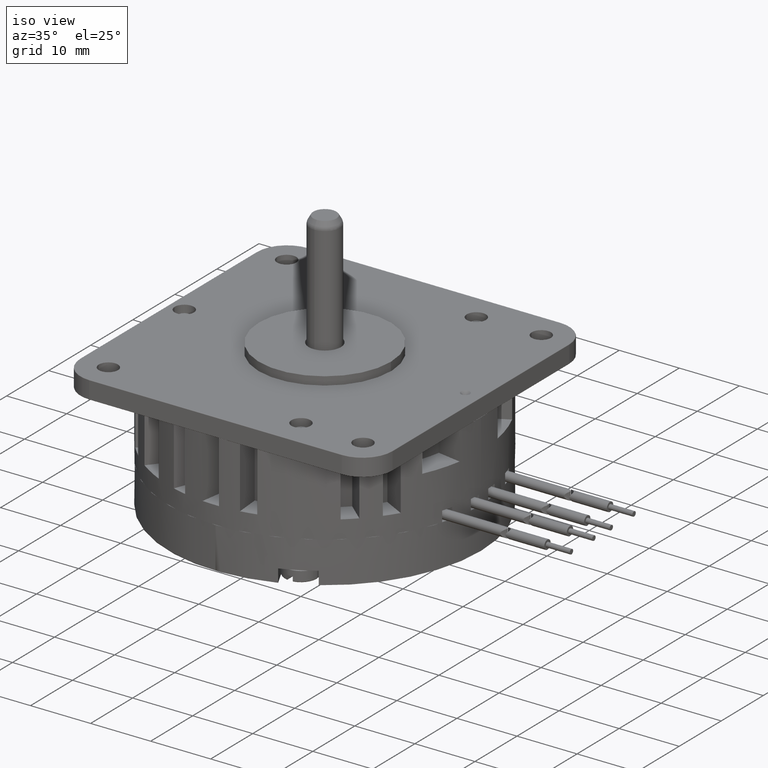
[diagram: clean part render]
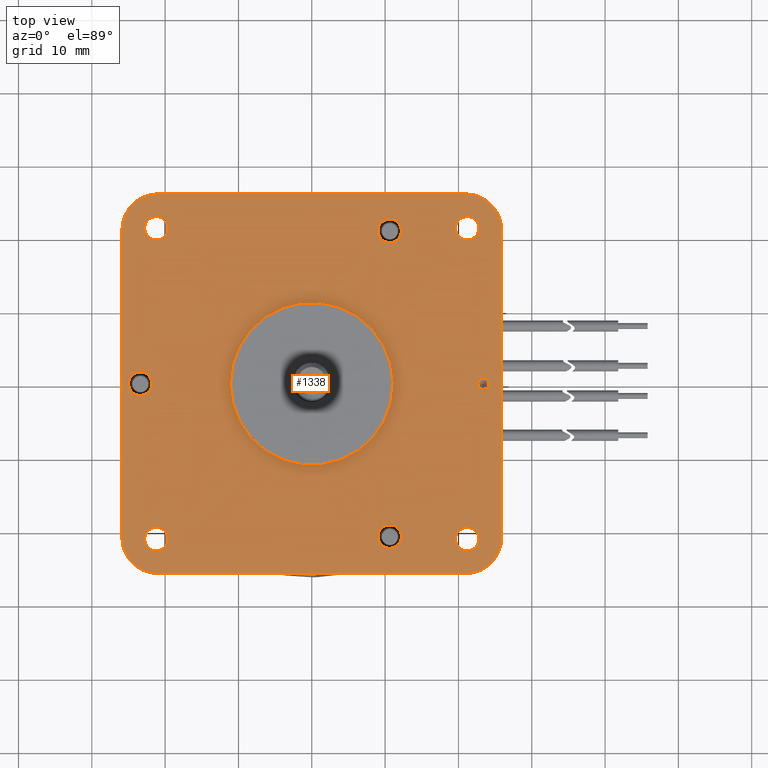
[diagram: tour spotlight — one face highlighted and labeled with its STEP entity id]
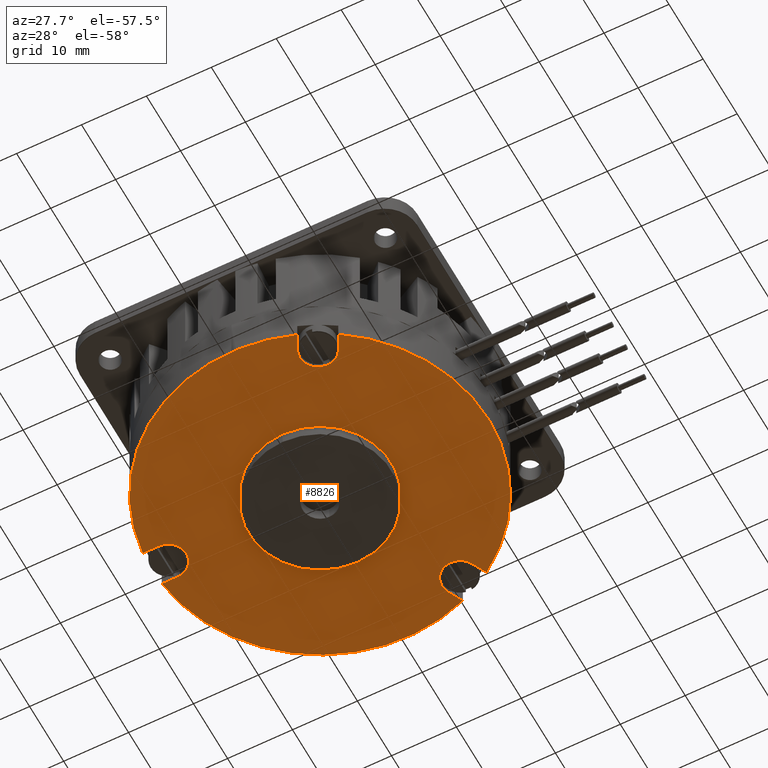
[diagram: tour spotlight — one face highlighted and labeled with its STEP entity id]
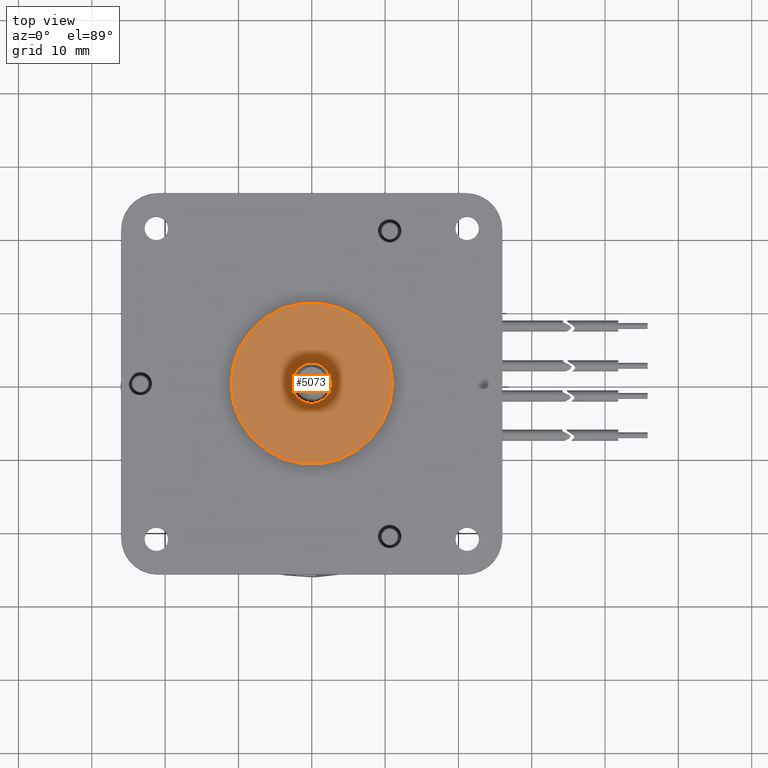
[diagram: tour spotlight — one face highlighted and labeled with its STEP entity id]
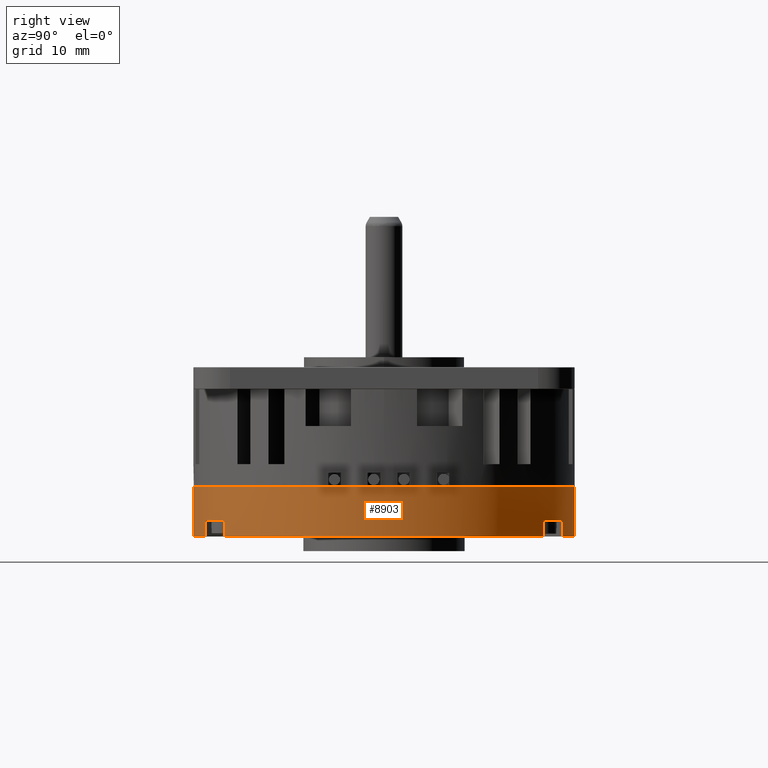
[diagram: tour spotlight — one face highlighted and labeled with its STEP entity id]
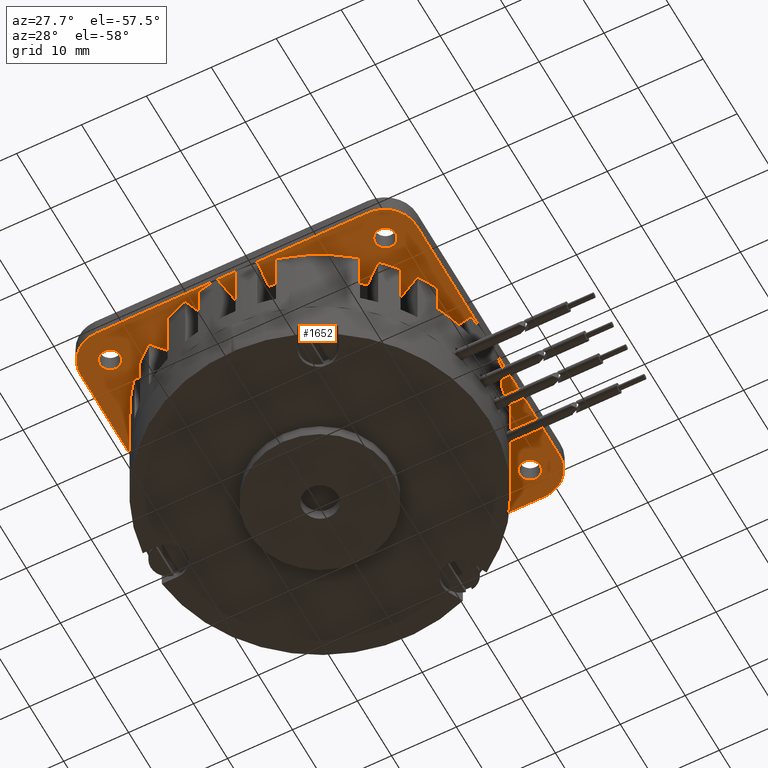
[diagram: tour spotlight — one face highlighted and labeled with its STEP entity id]
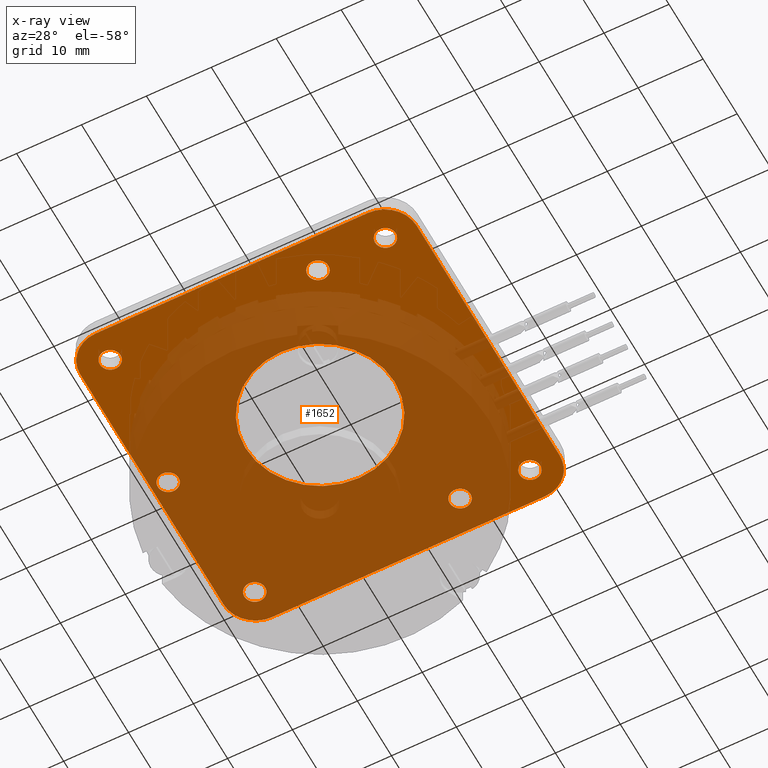
[diagram: x-ray of the same camera — body ghosted, this tour face saturated]
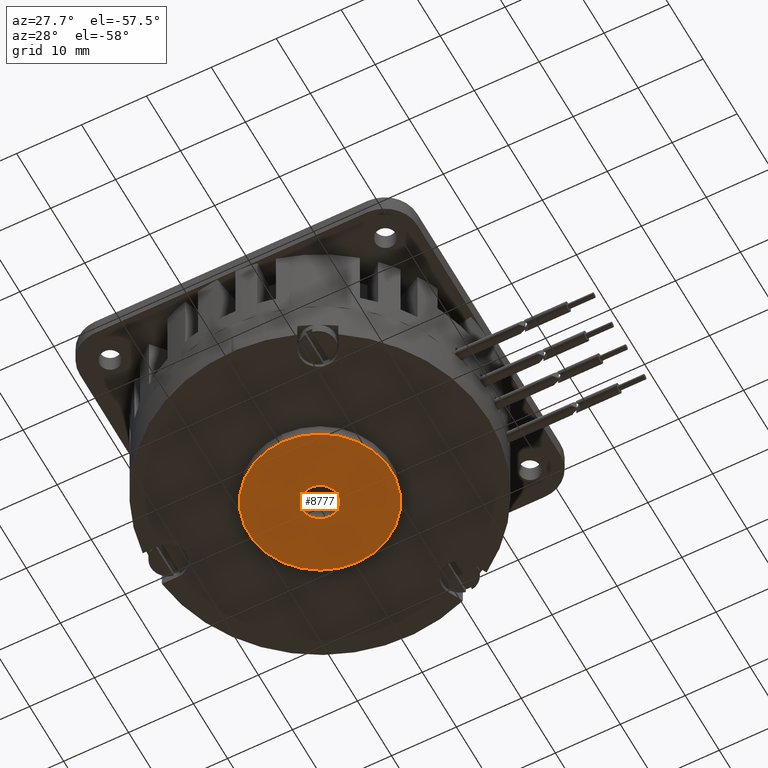
[diagram: tour spotlight — one face highlighted and labeled with its STEP entity id]
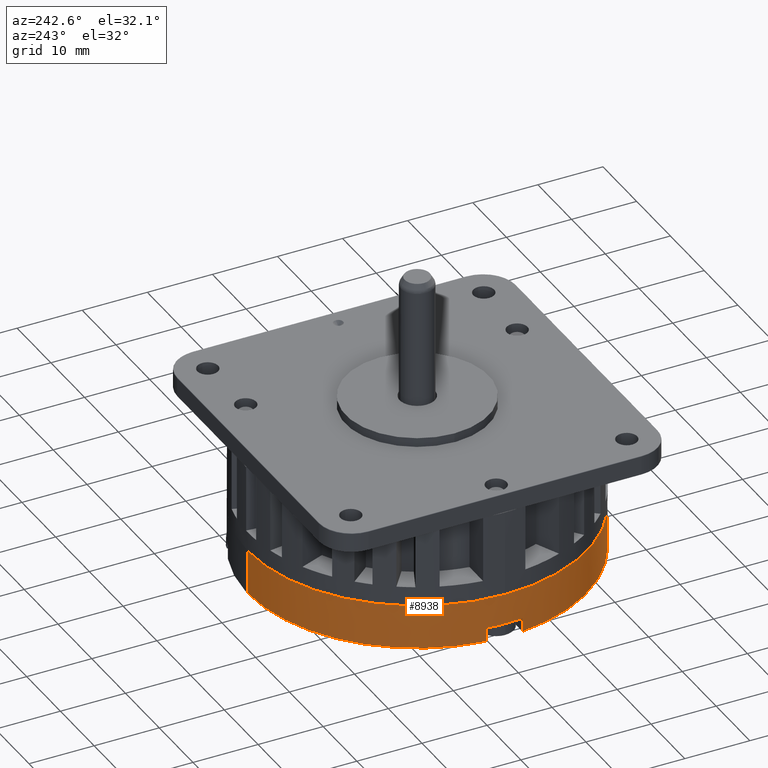
[diagram: tour spotlight — one face highlighted and labeled with its STEP entity id]
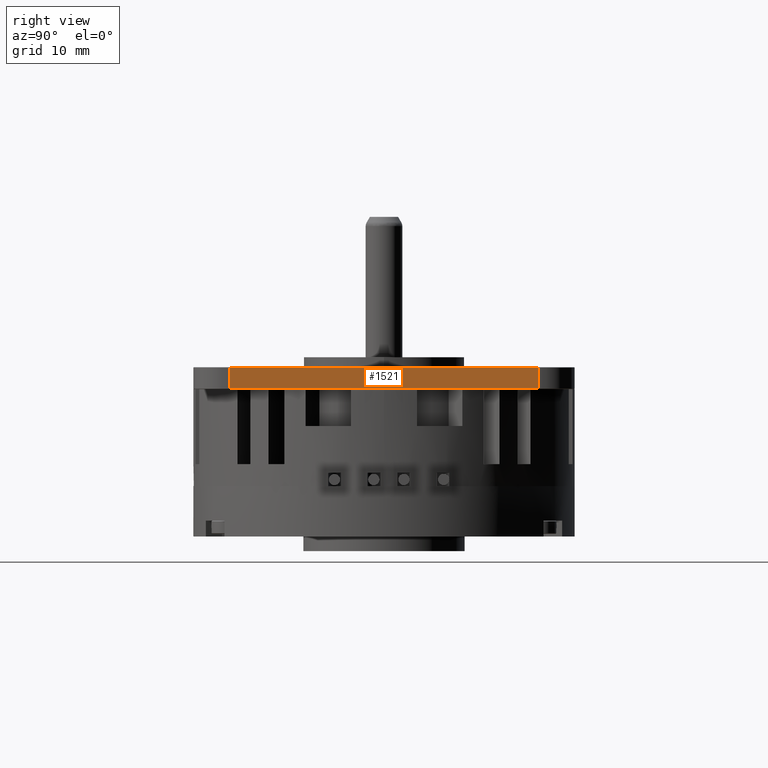
[diagram: tour spotlight — one face highlighted and labeled with its STEP entity id]
A machine part: a face-by-face anatomy tour. The part has 385 B-rep faces; the first image is the clean iso view, then the 8 largest visible faces are spotlighted one at a time (largest first), each with its STEP entity span.

Face 1 — top view, entity #1338. In plain terms, the highlighted planar face has unit normal (0, 0, 1).
Definition (entity closure, byte-faithful):
#523=CARTESIAN_POINT('',(-2.1E1,1.5E0,2.1E1));
#524=DIRECTION('',(0.E0,-1.E0,0.E0));
#525=DIRECTION('',(-2.446198489886E-7,0.E0,1.E0));
#526=AXIS2_PLACEMENT_3D('',#523,#524,#525);
#528=CARTESIAN_POINT('',(-2.1E1,1.5E0,-2.1E1));
#529=DIRECTION('',(0.E0,-1.E0,0.E0));
#530=DIRECTION('',(-1.E0,0.E0,-2.446198489886E-7));
#531=AXIS2_PLACEMENT_3D('',#528,#529,#530);
#533=CARTESIAN_POINT('',(2.1E1,1.5E0,-2.1E1));
#534=DIRECTION('',(0.E0,-1.E0,0.E0));
#535=DIRECTION('',(2.446198489886E-7,0.E0,-1.E0));
#536=AXIS2_PLACEMENT_3D('',#533,#534,#535);
#538=CARTESIAN_POINT('',(2.1E1,1.5E0,2.1E1));
#539=DIRECTION('',(0.E0,-1.E0,0.E0));
#540=DIRECTION('',(1.E0,0.E0,2.446198489886E-7));
#541=AXIS2_PLACEMENT_3D('',#538,#539,#540);
#543=CARTESIAN_POINT('',(0.E0,1.5E0,0.E0));
#544=DIRECTION('',(0.E0,1.E0,0.E0));
#545=DIRECTION('',(-9.999026627819E-1,0.E0,1.395223859017E-2));
#546=AXIS2_PLACEMENT_3D('',#543,#544,#545);
#548=CARTESIAN_POINT('',(0.E0,1.5E0,0.E0));
#549=DIRECTION('',(0.E0,1.E0,0.E0));
#550=DIRECTION('',(9.999026627819E-1,0.E0,-1.395223859017E-2));
#551=AXIS2_PLACEMENT_3D('',#548,#549,#550);
#553=CARTESIAN_POINT('',(-2.12E1,1.5E0,-2.12E1));
#554=DIRECTION('',(0.E0,1.E0,0.E0));
#555=DIRECTION('',(1.E0,0.E0,0.E0));
#556=AXIS2_PLACEMENT_3D('',#553,#554,#555);
#558=CARTESIAN_POINT('',(-2.12E1,1.5E0,-2.12E1));
#559=DIRECTION('',(0.E0,1.E0,0.E0));
#560=DIRECTION('',(-1.E0,0.E0,0.E0));
#561=AXIS2_PLACEMENT_3D('',#558,#559,#560);
#563=CARTESIAN_POINT('',(2.12E1,1.5E0,-2.12E1));
#564=DIRECTION('',(0.E0,1.E0,0.E0));
#565=DIRECTION('',(1.E0,0.E0,0.E0));
#566=AXIS2_PLACEMENT_3D('',#563,#564,#565);
#568=CARTESIAN_POINT('',(2.12E1,1.5E0,-2.12E1));
#569=DIRECTION('',(0.E0,1.E0,0.E0));
#570=DIRECTION('',(-1.E0,0.E0,0.E0));
#571=AXIS2_PLACEMENT_3D('',#568,#569,#570);
#573=CARTESIAN_POINT('',(-2.12E1,1.5E0,2.12E1));
#574=DIRECTION('',(0.E0,1.E0,0.E0));
#575=DIRECTION('',(-1.E0,0.E0,0.E0));
#576=AXIS2_PLACEMENT_3D('',#573,#574,#575);
#578=CARTESIAN_POINT('',(-2.12E1,1.5E0,2.12E1));
#579=DIRECTION('',(0.E0,1.E0,0.E0));
#580=DIRECTION('',(1.E0,0.E0,0.E0));
#581=AXIS2_PLACEMENT_3D('',#578,#579,#580);
#583=CARTESIAN_POINT('',(2.12E1,1.5E0,2.12E1));
#584=DIRECTION('',(0.E0,1.E0,0.E0));
#585=DIRECTION('',(-1.E0,0.E0,0.E0));
#586=AXIS2_PLACEMENT_3D('',#583,#584,#585);
#588=CARTESIAN_POINT('',(2.12E1,1.5E0,2.12E1));
#589=DIRECTION('',(0.E0,1.E0,0.E0));
#590=DIRECTION('',(1.E0,0.E0,0.E0));
#591=AXIS2_PLACEMENT_3D('',#588,#589,#590);
#593=CARTESIAN_POINT('',(2.34E1,1.5E0,0.E0));
#594=DIRECTION('',(0.E0,1.E0,0.E0));
#595=DIRECTION('',(1.E0,0.E0,0.E0));
#596=AXIS2_PLACEMENT_3D('',#593,#594,#595);
#598=CARTESIAN_POINT('',(2.34E1,1.5E0,0.E0));
#599=DIRECTION('',(0.E0,1.E0,0.E0));
#600=DIRECTION('',(-1.E0,0.E0,0.E0));
#601=AXIS2_PLACEMENT_3D('',#598,#599,#600);
#603=CARTESIAN_POINT('',(1.062337769391E1,1.5E0,-2.084955266601E1));
#604=DIRECTION('',(0.E0,1.E0,0.E0));
#605=DIRECTION('',(1.E0,0.E0,0.E0));
#606=AXIS2_PLACEMENT_3D('',#603,#604,#605);
#608=CARTESIAN_POINT('',(1.062337769391E1,1.5E0,-2.084955266601E1));
#609=DIRECTION('',(0.E0,1.E0,0.E0));
#610=DIRECTION('',(-1.E0,0.E0,0.E0));
#611=AXIS2_PLACEMENT_3D('',#608,#609,#610);
#613=CARTESIAN_POINT('',(1.062337769391E1,1.5E0,2.084955266601E1));
#614=DIRECTION('',(0.E0,1.E0,0.E0));
#615=DIRECTION('',(1.E0,0.E0,0.E0));
#616=AXIS2_PLACEMENT_3D('',#613,#614,#615);
#618=CARTESIAN_POINT('',(1.062337769391E1,1.5E0,2.084955266601E1));
#619=DIRECTION('',(0.E0,1.E0,0.E0));
#620=DIRECTION('',(-1.E0,0.E0,0.E0));
#621=AXIS2_PLACEMENT_3D('',#618,#619,#620);
#623=CARTESIAN_POINT('',(-2.34E1,1.5E0,0.E0));
#624=DIRECTION('',(0.E0,1.E0,0.E0));
#625=DIRECTION('',(1.E0,0.E0,0.E0));
#626=AXIS2_PLACEMENT_3D('',#623,#624,#625);
#628=CARTESIAN_POINT('',(-2.34E1,1.5E0,0.E0));
#629=DIRECTION('',(0.E0,1.E0,0.E0));
#630=DIRECTION('',(-1.E0,0.E0,0.E0));
#631=AXIS2_PLACEMENT_3D('',#628,#629,#630);
#648=DIRECTION('',(1.E0,0.E0,0.E0));
#649=VECTOR('',#648,4.200000079911E1);
#650=CARTESIAN_POINT('',(-2.100000039955E1,1.5E0,2.590000003943E1));
#651=LINE('',#650,#649);
#671=DIRECTION('',(0.E0,0.E0,-1.E0));
#672=VECTOR('',#671,4.200000079911E1);
#673=CARTESIAN_POINT('',(2.590000003943E1,1.5E0,2.100000039955E1));
#674=LINE('',#673,#672);
#694=DIRECTION('',(-1.E0,0.E0,0.E0));
#695=VECTOR('',#694,4.200000079911E1);
#696=CARTESIAN_POINT('',(2.100000039955E1,1.5E0,-2.590000003943E1));
#697=LINE('',#696,#695);
#717=DIRECTION('',(0.E0,0.E0,1.E0));
#718=VECTOR('',#717,4.200000079911E1);
#719=CARTESIAN_POINT('',(-2.590000003943E1,1.5E0,-2.100000039955E1));
#720=LINE('',#719,#718);
#991=CARTESIAN_POINT('',(0.E0,1.5E0,0.E0));
#992=DIRECTION('',(0.E0,-1.E0,0.E0));
#993=DIRECTION('',(9.999026627819E-1,0.E0,-1.395223859017E-2));
#994=AXIS2_PLACEMENT_3D('',#991,#992,#993);
#1011=CARTESIAN_POINT('',(0.E0,1.5E0,0.E0));
#1012=DIRECTION('',(0.E0,-1.E0,0.E0));
#1013=DIRECTION('',(-9.999026627819E-1,0.E0,1.395223859017E-2));
#1014=AXIS2_PLACEMENT_3D('',#1011,#1012,#1013);
#1099=CARTESIAN_POINT('',(-2.100000119864E1,1.5E0,2.590000011829E1));
#1100=CARTESIAN_POINT('',(-2.590000011829E1,1.5E0,2.100000119868E1));
#1101=VERTEX_POINT('',#1099);
#1102=VERTEX_POINT('',#1100);
#1103=CARTESIAN_POINT('',(-2.590000003943E1,1.5E0,-2.100000039955E1));
#1104=VERTEX_POINT('',#1103);
#1105=CARTESIAN_POINT('',(-2.100000119868E1,1.5E0,-2.590000011829E1));
#1106=VERTEX_POINT('',#1105);
#1107=CARTESIAN_POINT('',(2.100000039955E1,1.5E0,-2.590000003943E1));
#1108=VERTEX_POINT('',#1107);
#1109=CARTESIAN_POINT('',(2.590000011829E1,1.5E0,-2.100000119868E1));
#1110=VERTEX_POINT('',#1109);
#1111=CARTESIAN_POINT('',(2.590000003943E1,1.5E0,2.100000039955E1));
#1112=VERTEX_POINT('',#1111);
#1113=CARTESIAN_POINT('',(2.100000119868E1,1.5E0,2.590000011829E1));
#1114=VERTEX_POINT('',#1113);
#1115=CARTESIAN_POINT('',(-1.109891950912E1,1.5E0,1.548698476846E-1));
#1116=CARTESIAN_POINT('',(1.109999906901E1,1.5E0,4.428059604058E-3));
#1117=VERTEX_POINT('',#1115);
#1118=VERTEX_POINT('',#1116);
#1119=CARTESIAN_POINT('',(-1.109999906901E1,1.5E0,-4.428059604057E-3));
#1120=VERTEX_POINT('',#1119);
#1121=CARTESIAN_POINT('',(1.109891950912E1,1.5E0,-1.548698476846E-1));
#1122=VERTEX_POINT('',#1121);
#1123=CARTESIAN_POINT('',(-1.96E1,1.5E0,-2.12E1));
#1124=CARTESIAN_POINT('',(-2.28E1,1.5E0,-2.12E1));
#1125=VERTEX_POINT('',#1123);
#1126=VERTEX_POINT('',#1124);
#1127=CARTESIAN_POINT('',(2.28E1,1.5E0,-2.12E1));
#1128=CARTESIAN_POINT('',(1.96E1,1.5E0,-2.12E1));
#1129=VERTEX_POINT('',#1127);
#1130=VERTEX_POINT('',#1128);
#1131=CARTESIAN_POINT('',(-2.28E1,1.5E0,2.12E1));
#1132=CARTESIAN_POINT('',(-1.96E1,1.5E0,2.12E1));
#1133=VERTEX_POINT('',#1131);
#1134=VERTEX_POINT('',#1132);
#1135=CARTESIAN_POINT('',(1.96E1,1.5E0,2.12E1));
#1136=CARTESIAN_POINT('',(2.28E1,1.5E0,2.12E1));
#1137=VERTEX_POINT('',#1135);
#1138=VERTEX_POINT('',#1136);
#1139=CARTESIAN_POINT('',(2.415E1,1.5E0,0.E0));
#1140=CARTESIAN_POINT('',(2.265E1,1.5E0,0.E0));
#1141=VERTEX_POINT('',#1139);
#1142=VERTEX_POINT('',#1140);
#1143=CARTESIAN_POINT('',(1.222337769391E1,1.5E0,-2.084955266601E1));
#1144=CARTESIAN_POINT('',(9.023377693910E0,1.5E0,-2.084955266601E1));
#1145=VERTEX_POINT('',#1143);
#1146=VERTEX_POINT('',#1144);
#1147=CARTESIAN_POINT('',(1.222337769391E1,1.5E0,2.084955266601E1));
#1148=CARTESIAN_POINT('',(9.023377693910E0,1.5E0,2.084955266601E1));
#1149=VERTEX_POINT('',#1147);
#1150=VERTEX_POINT('',#1148);
#1151=CARTESIAN_POINT('',(-2.18E1,1.5E0,0.E0));
#1152=CARTESIAN_POINT('',(-2.5E1,1.5E0,0.E0));
#1153=VERTEX_POINT('',#1151);
#1154=VERTEX_POINT('',#1152);
#1257=CARTESIAN_POINT('',(0.E0,1.5E0,0.E0));
#1258=DIRECTION('',(0.E0,1.E0,0.E0));
#1259=DIRECTION('',(1.E0,0.E0,0.E0));
#1260=AXIS2_PLACEMENT_3D('',#1257,#1258,#1259);
#1261=PLANE('',#1260);
#1263=ORIENTED_EDGE('',*,*,#1262,.T.);
#1265=ORIENTED_EDGE('',*,*,#1264,.F.);
#1267=ORIENTED_EDGE('',*,*,#1266,.T.);
#1269=ORIENTED_EDGE('',*,*,#1268,.F.);
#1271=ORIENTED_EDGE('',*,*,#1270,.T.);
#1273=ORIENTED_EDGE('',*,*,#1272,.F.);
#1275=ORIENTED_EDGE('',*,*,#1274,.T.);
#1277=ORIENTED_EDGE('',*,*,#1276,.F.);
#1278=EDGE_LOOP('',(#1263,#1265,#1267,#1269,#1271,#1273,#1275,#1277));
#1279=FACE_OUTER_BOUND('',#1278,.F.);
#1281=ORIENTED_EDGE('',*,*,#1280,.F.);
#1283=ORIENTED_EDGE('',*,*,#1282,.T.);
#1285=ORIENTED_EDGE('',*,*,#1284,.F.);
#1287=ORIENTED_EDGE('',*,*,#1286,.T.);
#1288=EDGE_LOOP('',(#1281,#1283,#1285,#1287));
#1289=FACE_BOUND('',#1288,.F.);
#1291=ORIENTED_EDGE('',*,*,#1290,.T.);
#1293=ORIENTED_EDGE('',*,*,#1292,.T.);
#1294=EDGE_LOOP('',(#1291,#1293));
#1295=FACE_BOUND('',#1294,.F.);
#1297=ORIENTED_EDGE('',*,*,#1296,.T.);
#1299=ORIENTED_EDGE('',*,*,#1298,.T.);
#1300=EDGE_LOOP('',(#1297,#1299));
#1301=FACE_BOUND('',#1300,.F.);
#1303=ORIENTED_EDGE('',*,*,#1302,.T.);
#1305=ORIENTED_EDGE('',*,*,#1304,.T.);
#1306=EDGE_LOOP('',(#1303,#1305));
#1307=FACE_BOUND('',#1306,.F.);
#1309=ORIENTED_EDGE('',*,*,#1308,.T.);
#1311=ORIENTED_EDGE('',*,*,#1310,.T.);
#1312=EDGE_LOOP('',(#1309,#1311));
#1313=FACE_BOUND('',#1312,.F.);
#1315=ORIENTED_EDGE('',*,*,#1314,.T.);
#1317=ORIENTED_EDGE('',*,*,#1316,.T.);
#1318=EDGE_LOOP('',(#1315,#1317));
#1319=FACE_BOUND('',#1318,.F.);
#1321=ORIENTED_EDGE('',*,*,#1320,.T.);
#1323=ORIENTED_EDGE('',*,*,#1322,.T.);
#1324=EDGE_LOOP('',(#1321,#1323));
#1325=FACE_BOUND('',#1324,.F.);
#1327=ORIENTED_EDGE('',*,*,#1326,.T.);
#1329=ORIENTED_EDGE('',*,*,#1328,.T.);
#1330=EDGE_LOOP('',(#1327,#1329));
#1331=FACE_BOUND('',#1330,.F.);
#1333=ORIENTED_EDGE('',*,*,#1332,.T.);
#1335=ORIENTED_EDGE('',*,*,#1334,.T.);
#1336=EDGE_LOOP('',(#1333,#1335));
#1337=FACE_BOUND('',#1336,.F.);
#1338=ADVANCED_FACE('',(#1279,#1289,#1295,#1301,#1307,#1313,#1319,#1325,#1331,
#1337),#1261,.T.);
#527=CIRCLE('',#526,4.900000118287E0);
#532=CIRCLE('',#531,4.900000118287E0);
#537=CIRCLE('',#536,4.900000118287E0);
#542=CIRCLE('',#541,4.900000118287E0);
#547=CIRCLE('',#546,1.109999995224E1);
#552=CIRCLE('',#551,1.109999995224E1);
#557=CIRCLE('',#556,1.6E0);
#562=CIRCLE('',#561,1.6E0);
#567=CIRCLE('',#566,1.6E0);
#572=CIRCLE('',#571,1.6E0);
#577=CIRCLE('',#576,1.6E0);
#582=CIRCLE('',#581,1.6E0);
#587=CIRCLE('',#586,1.6E0);
#592=CIRCLE('',#591,1.6E0);
#597=CIRCLE('',#596,7.500000000002E-1);
#602=CIRCLE('',#601,7.500000000002E-1);
#607=CIRCLE('',#606,1.6E0);
#612=CIRCLE('',#611,1.6E0);
#617=CIRCLE('',#616,1.6E0);
#622=CIRCLE('',#621,1.6E0);
#627=CIRCLE('',#626,1.6E0);
#632=CIRCLE('',#631,1.6E0);
#995=CIRCLE('',#994,1.109999995224E1);
#1015=CIRCLE('',#1014,1.109999995224E1);
#1262=EDGE_CURVE('',#1101,#1102,#527,.T.);
#1264=EDGE_CURVE('',#1104,#1102,#720,.T.);
#1266=EDGE_CURVE('',#1104,#1106,#532,.T.);
#1268=EDGE_CURVE('',#1108,#1106,#697,.T.);
#1270=EDGE_CURVE('',#1108,#1110,#537,.T.);
#1272=EDGE_CURVE('',#1112,#1110,#674,.T.);
#1274=EDGE_CURVE('',#1112,#1114,#542,.T.);
#1276=EDGE_CURVE('',#1101,#1114,#651,.T.);
#1280=EDGE_CURVE('',#1117,#1120,#1015,.T.);
#1282=EDGE_CURVE('',#1117,#1118,#547,.T.);
#1284=EDGE_CURVE('',#1122,#1118,#995,.T.);
#1286=EDGE_CURVE('',#1122,#1120,#552,.T.);
#1290=EDGE_CURVE('',#1125,#1126,#557,.T.);
#1292=EDGE_CURVE('',#1126,#1125,#562,.T.);
#1296=EDGE_CURVE('',#1129,#1130,#567,.T.);
#1298=EDGE_CURVE('',#1130,#1129,#572,.T.);
#1302=EDGE_CURVE('',#1133,#1134,#577,.T.);
#1304=EDGE_CURVE('',#1134,#1133,#582,.T.);
#1308=EDGE_CURVE('',#1137,#1138,#587,.T.);
#1310=EDGE_CURVE('',#1138,#1137,#592,.T.);
#1314=EDGE_CURVE('',#1141,#1142,#597,.T.);
#1316=EDGE_CURVE('',#1142,#1141,#602,.T.);
#1320=EDGE_CURVE('',#1145,#1146,#607,.T.);
#1322=EDGE_CURVE('',#1146,#1145,#612,.T.);
#1326=EDGE_CURVE('',#1149,#1150,#617,.T.);
#1328=EDGE_CURVE('',#1150,#1149,#622,.T.);
#1332=EDGE_CURVE('',#1153,#1154,#627,.T.);
#1334=EDGE_CURVE('',#1154,#1153,#632,.T.);

Face 2 — auxiliary view, entity #8826. In plain terms, the highlighted planar face has unit normal (0, 0, -1).
Definition (entity closure, byte-faithful):
#8210=CARTESIAN_POINT('',(0.E0,-2.42E0,0.E0));
#8211=DIRECTION('',(0.E0,-1.E0,0.E0));
#8212=DIRECTION('',(1.E0,0.E0,0.E0));
#8213=AXIS2_PLACEMENT_3D('',#8210,#8211,#8212);
#8224=CARTESIAN_POINT('',(0.E0,-2.42E0,0.E0));
#8225=DIRECTION('',(0.E0,-1.E0,0.E0));
#8226=DIRECTION('',(-1.E0,0.E0,0.E0));
#8227=AXIS2_PLACEMENT_3D('',#8224,#8225,#8226);
#8233=DIRECTION('',(-8.910065241888E-1,0.E0,4.539904997386E-1));
#8234=VECTOR('',#8233,2.448791074325E0);
#8235=CARTESIAN_POINT('',(2.176026809027E1,-2.42E0,-1.422992384518E1));
#8236=LINE('',#8235,#8234);
#8237=CARTESIAN_POINT('',(0.E0,-2.42E0,0.E0));
#8238=DIRECTION('',(0.E0,-1.E0,0.E0));
#8239=DIRECTION('',(-8.369333880870E-1,0.E0,-5.473047632766E-1));
#8240=AXIS2_PLACEMENT_3D('',#8237,#8238,#8239);
#8242=DIRECTION('',(-8.910065241883E-1,0.E0,-4.539904997397E-1));
#8243=VECTOR('',#8242,2.448791074226E0);
#8244=CARTESIAN_POINT('',(-1.957837926675E1,-2.42E0,-1.311819596165E1));
#8245=LINE('',#8244,#8243);
#8246=DIRECTION('',(8.910065241886E-1,0.E0,4.539904997390E-1));
#8247=VECTOR('',#8246,2.448791074201E0);
#8248=CARTESIAN_POINT('',(-2.430261488881E1,-2.42E0,-9.240287309732E0));
#8249=LINE('',#8248,#8247);
#8250=DIRECTION('',(0.E0,0.E0,1.E0));
#8251=VECTOR('',#8250,2.448791074247E0);
#8252=CARTESIAN_POINT('',(-2.8E0,-2.42E0,2.34E1));
#8253=LINE('',#8252,#8251);
#8254=DIRECTION('',(0.E0,0.E0,-1.E0));
#8255=VECTOR('',#8254,2.448791074247E0);
#8256=CARTESIAN_POINT('',(2.8E0,-2.42E0,2.584879107425E1));
#8257=LINE('',#8256,#8255);
#8258=DIRECTION('',(8.910065241887E-1,0.E0,-4.539904997388E-1));
#8259=VECTOR('',#8258,2.448791074178E0);
#8260=CARTESIAN_POINT('',(2.212072606534E1,-2.42E0,-8.128559426208E0));
#8261=LINE('',#8260,#8259);
#8262=CARTESIAN_POINT('',(2.084955266601E1,-2.42E0,-1.062337769391E1));
#8263=DIRECTION('',(0.E0,1.E0,0.E0));
#8264=DIRECTION('',(-4.539904997780E-1,0.E0,-8.910065241688E-1));
#8265=AXIS2_PLACEMENT_3D('',#8262,#8263,#8264);
#8276=CARTESIAN_POINT('',(0.E0,-2.42E0,0.E0));
#8277=DIRECTION('',(0.E0,-1.E0,0.E0));
#8278=DIRECTION('',(9.347159572618E-1,0.E0,-3.553956657589E-1));
#8279=AXIS2_PLACEMENT_3D('',#8276,#8277,#8278);
#8289=CARTESIAN_POINT('',(0.E0,-2.42E0,0.E0));
#8290=DIRECTION('',(0.E0,-1.E0,0.E0));
#8291=DIRECTION('',(-1.076923076923E-1,0.E0,9.941842720864E-1));
#8292=AXIS2_PLACEMENT_3D('',#8289,#8290,#8291);
#8347=CARTESIAN_POINT('',(0.E0,-2.42E0,2.34E1));
#8348=DIRECTION('',(0.E0,1.E0,0.E0));
#8349=DIRECTION('',(1.E0,0.E0,0.E0));
#8350=AXIS2_PLACEMENT_3D('',#8347,#8348,#8349);
#8510=CARTESIAN_POINT('',(-2.084955266601E1,-2.42E0,-1.062337769391E1));
#8511=DIRECTION('',(0.E0,1.E0,0.E0));
#8512=DIRECTION('',(-4.539904997589E-1,0.E0,8.910065241785E-1));
#8513=AXIS2_PLACEMENT_3D('',#8510,#8511,#8512);
#8673=CARTESIAN_POINT('',(2.212072606534E1,-2.42E0,-8.128559426208E0));
#8674=CARTESIAN_POINT('',(2.430261488881E1,-2.42E0,-9.240287309730E0));
#8675=VERTEX_POINT('',#8673);
#8676=VERTEX_POINT('',#8674);
#8677=CARTESIAN_POINT('',(2.8E0,-2.42E0,2.584879107425E1));
#8678=CARTESIAN_POINT('',(2.8E0,-2.42E0,2.34E1));
#8679=VERTEX_POINT('',#8677);
#8680=VERTEX_POINT('',#8678);
#8681=CARTESIAN_POINT('',(-2.8E0,-2.42E0,2.34E1));
#8682=CARTESIAN_POINT('',(-2.8E0,-2.42E0,2.584879107425E1));
#8683=VERTEX_POINT('',#8681);
#8684=VERTEX_POINT('',#8682);
#8685=CARTESIAN_POINT('',(-2.430261488881E1,-2.42E0,-9.240287309732E0));
#8686=CARTESIAN_POINT('',(-2.212072606532E1,-2.42E0,-8.128559426199E0));
#8687=VERTEX_POINT('',#8685);
#8688=VERTEX_POINT('',#8686);
#8689=CARTESIAN_POINT('',(-1.957837926675E1,-2.42E0,-1.311819596165E1));
#8690=CARTESIAN_POINT('',(-2.176026809026E1,-2.42E0,-1.422992384519E1));
#8691=VERTEX_POINT('',#8689);
#8692=VERTEX_POINT('',#8690);
#8693=CARTESIAN_POINT('',(2.176026809027E1,-2.42E0,-1.422992384518E1));
#8694=VERTEX_POINT('',#8693);
#8695=CARTESIAN_POINT('',(1.957837926667E1,-2.42E0,-1.311819596160E1));
#8696=VERTEX_POINT('',#8695);
#8697=CARTESIAN_POINT('',(1.1E1,-2.42E0,0.E0));
#8698=CARTESIAN_POINT('',(-1.1E1,-2.42E0,0.E0));
#8699=VERTEX_POINT('',#8697);
#8700=VERTEX_POINT('',#8698);
#8791=CARTESIAN_POINT('',(0.E0,-2.42E0,0.E0));
#8792=DIRECTION('',(0.E0,-1.E0,0.E0));
#8793=DIRECTION('',(1.E0,0.E0,0.E0));
#8794=AXIS2_PLACEMENT_3D('',#8791,#8792,#8793);
#8795=PLANE('',#8794);
#8797=ORIENTED_EDGE('',*,*,#8796,.F.);
#8799=ORIENTED_EDGE('',*,*,#8798,.F.);
#8801=ORIENTED_EDGE('',*,*,#8800,.F.);
#8803=ORIENTED_EDGE('',*,*,#8802,.F.);
#8805=ORIENTED_EDGE('',*,*,#8804,.F.);
#8807=ORIENTED_EDGE('',*,*,#8806,.F.);
#8809=ORIENTED_EDGE('',*,*,#8808,.F.);
#8811=ORIENTED_EDGE('',*,*,#8810,.F.);
#8813=ORIENTED_EDGE('',*,*,#8812,.F.);
#8815=ORIENTED_EDGE('',*,*,#8814,.F.);
#8817=ORIENTED_EDGE('',*,*,#8816,.F.);
#8819=ORIENTED_EDGE('',*,*,#8818,.F.);
#8820=EDGE_LOOP('',(#8797,#8799,#8801,#8803,#8805,#8807,#8809,#8811,#8813,#8815,
#8817,#8819));
#8821=FACE_OUTER_BOUND('',#8820,.F.);
#8822=ORIENTED_EDGE('',*,*,#8754,.T.);
#8823=ORIENTED_EDGE('',*,*,#8785,.T.);
#8824=EDGE_LOOP('',(#8822,#8823));
#8825=FACE_BOUND('',#8824,.F.);
#8826=ADVANCED_FACE('',(#8821,#8825),#8795,.T.);
#8214=CIRCLE('',#8213,1.1E1);
#8228=CIRCLE('',#8227,1.1E1);
#8241=CIRCLE('',#8240,2.6E1);
#8266=CIRCLE('',#8265,2.8E0);
#8280=CIRCLE('',#8279,2.6E1);
#8293=CIRCLE('',#8292,2.6E1);
#8351=CIRCLE('',#8350,2.8E0);
#8514=CIRCLE('',#8513,2.8E0);
#8754=EDGE_CURVE('',#8699,#8700,#8214,.T.);
#8785=EDGE_CURVE('',#8700,#8699,#8228,.T.);
#8796=EDGE_CURVE('',#8696,#8675,#8266,.T.);
#8798=EDGE_CURVE('',#8694,#8696,#8236,.T.);
#8800=EDGE_CURVE('',#8692,#8694,#8241,.T.);
#8802=EDGE_CURVE('',#8691,#8692,#8245,.T.);
#8804=EDGE_CURVE('',#8688,#8691,#8514,.T.);
#8806=EDGE_CURVE('',#8687,#8688,#8249,.T.);
#8808=EDGE_CURVE('',#8684,#8687,#8293,.T.);
#8810=EDGE_CURVE('',#8683,#8684,#8253,.T.);
#8812=EDGE_CURVE('',#8680,#8683,#8351,.T.);
#8814=EDGE_CURVE('',#8679,#8680,#8257,.T.);
#8816=EDGE_CURVE('',#8676,#8679,#8280,.T.);
#8818=EDGE_CURVE('',#8675,#8676,#8261,.T.);

Face 3 — top view, entity #5073. In plain terms, the highlighted planar face has unit normal (0, 0, 1).
Definition (entity closure, byte-faithful):
#2087=CARTESIAN_POINT('',(5.E-2,8.755E0,0.E0));
#2088=DIRECTION('',(0.E0,1.E0,0.E0));
#2089=DIRECTION('',(1.E0,0.E0,0.E0));
#2090=AXIS2_PLACEMENT_3D('',#2087,#2088,#2089);
#2101=CARTESIAN_POINT('',(5.E-2,8.755E0,0.E0));
#2102=DIRECTION('',(0.E0,1.E0,0.E0));
#2103=DIRECTION('',(-1.E0,0.E0,0.E0));
#2104=AXIS2_PLACEMENT_3D('',#2101,#2102,#2103);
#2110=CARTESIAN_POINT('',(5.E-2,8.755E0,0.E0));
#2111=DIRECTION('',(0.E0,1.E0,0.E0));
#2112=DIRECTION('',(1.E0,0.E0,0.E0));
#2113=AXIS2_PLACEMENT_3D('',#2110,#2111,#2112);
#2119=CARTESIAN_POINT('',(5.E-2,8.755E0,0.E0));
#2120=DIRECTION('',(0.E0,1.E0,0.E0));
#2121=DIRECTION('',(-1.E0,0.E0,0.E0));
#2122=AXIS2_PLACEMENT_3D('',#2119,#2120,#2121);
#4974=CARTESIAN_POINT('',(2.75E0,8.755E0,0.E0));
#4975=CARTESIAN_POINT('',(-2.65E0,8.755E0,0.E0));
#4976=VERTEX_POINT('',#4974);
#4977=VERTEX_POINT('',#4975);
#4978=CARTESIAN_POINT('',(1.105E1,8.755E0,0.E0));
#4979=CARTESIAN_POINT('',(-1.095E1,8.755E0,0.E0));
#4980=VERTEX_POINT('',#4978);
#4981=VERTEX_POINT('',#4979);
#5058=CARTESIAN_POINT('',(0.E0,8.755E0,0.E0));
#5059=DIRECTION('',(0.E0,1.E0,0.E0));
#5060=DIRECTION('',(-1.E0,0.E0,0.E0));
#5061=AXIS2_PLACEMENT_3D('',#5058,#5059,#5060);
#5062=PLANE('',#5061);
#5064=ORIENTED_EDGE('',*,*,#5063,.F.);
#5066=ORIENTED_EDGE('',*,*,#5065,.F.);
#5067=EDGE_LOOP('',(#5064,#5066));
#5068=FACE_OUTER_BOUND('',#5067,.F.);
#5069=ORIENTED_EDGE('',*,*,#5027,.T.);
#5070=ORIENTED_EDGE('',*,*,#5052,.T.);
#5071=EDGE_LOOP('',(#5069,#5070));
#5072=FACE_BOUND('',#5071,.F.);
#5073=ADVANCED_FACE('',(#5068,#5072),#5062,.T.);
#2091=CIRCLE('',#2090,2.7E0);
#2105=CIRCLE('',#2104,2.7E0);
#2114=CIRCLE('',#2113,1.1E1);
#2123=CIRCLE('',#2122,1.1E1);
#5027=EDGE_CURVE('',#4976,#4977,#2091,.T.);
#5052=EDGE_CURVE('',#4977,#4976,#2105,.T.);
#5063=EDGE_CURVE('',#4980,#4981,#2114,.T.);
#5065=EDGE_CURVE('',#4981,#4980,#2123,.T.);

Face 4 — right view, entity #8903. In plain terms, the highlighted cylindrical surface (partial cylindrical patch) has radius 26 mm, axis along (0, 0, -1).
Definition (entity closure, byte-faithful):
#8237=CARTESIAN_POINT('',(0.E0,-2.42E0,0.E0));
#8238=DIRECTION('',(0.E0,-1.E0,0.E0));
#8239=DIRECTION('',(-8.369333880870E-1,0.E0,-5.473047632766E-1));
#8240=AXIS2_PLACEMENT_3D('',#8237,#8238,#8239);
#8276=CARTESIAN_POINT('',(0.E0,-2.42E0,0.E0));
#8277=DIRECTION('',(0.E0,-1.E0,0.E0));
#8278=DIRECTION('',(9.347159572618E-1,0.E0,-3.553956657589E-1));
#8279=AXIS2_PLACEMENT_3D('',#8276,#8277,#8278);
#8281=DIRECTION('',(0.E0,-1.E0,0.E0));
#8282=VECTOR('',#8281,6.8E0);
#8283=CARTESIAN_POINT('',(-2.6E1,4.45E0,0.E0));
#8284=LINE('',#8283,#8282);
#8285=DIRECTION('',(-7.612957883144E-14,-1.E0,2.085950459981E-11));
#8286=VECTOR('',#8285,7.E-2);
#8287=CARTESIAN_POINT('',(-2.8E0,-2.35E0,2.584879107425E1));
#8288=LINE('',#8287,#8286);
#8289=CARTESIAN_POINT('',(0.E0,-2.42E0,0.E0));
#8290=DIRECTION('',(0.E0,-1.E0,0.E0));
#8291=DIRECTION('',(-1.076923076923E-1,0.E0,9.941842720864E-1));
#8292=AXIS2_PLACEMENT_3D('',#8289,#8290,#8291);
#8294=DIRECTION('',(-5.239024779798E-13,-1.E0,3.372622201995E-13));
#8295=VECTOR('',#8294,2.17E0);
#8296=CARTESIAN_POINT('',(2.430261488881E1,-2.5E-1,-9.240287309731E0));
#8297=LINE('',#8296,#8295);
#8298=DIRECTION('',(2.537652627715E-14,-1.E0,2.085950459981E-11));
#8299=VECTOR('',#8298,7.E-2);
#8300=CARTESIAN_POINT('',(2.8E0,-2.35E0,2.584879107425E1));
#8301=LINE('',#8300,#8299);
#8302=CARTESIAN_POINT('',(0.E0,-2.35E0,0.E0));
#8303=DIRECTION('',(0.E0,-1.E0,0.E0));
#8304=DIRECTION('',(1.E0,0.E0,0.E0));
#8305=AXIS2_PLACEMENT_3D('',#8302,#8303,#8304);
#8315=CARTESIAN_POINT('',(0.E0,-2.35E0,0.E0));
#8316=DIRECTION('',(0.E0,-1.E0,0.E0));
#8317=DIRECTION('',(-1.076923076923E-1,0.E0,9.941842720864E-1));
#8318=AXIS2_PLACEMENT_3D('',#8315,#8316,#8317);
#8320=DIRECTION('',(0.E0,-1.E0,0.E0));
#8321=VECTOR('',#8320,6.8E0);
#8322=CARTESIAN_POINT('',(2.6E1,4.45E0,0.E0));
#8323=LINE('',#8322,#8321);
#8393=CARTESIAN_POINT('',(0.E0,4.45E0,0.E0));
#8394=DIRECTION('',(0.E0,-1.E0,0.E0));
#8395=DIRECTION('',(-1.E0,0.E0,0.E0));
#8396=AXIS2_PLACEMENT_3D('',#8393,#8394,#8395);
#8491=CARTESIAN_POINT('',(0.E0,-2.5E-1,0.E0));
#8492=DIRECTION('',(0.E0,1.E0,0.E0));
#8493=DIRECTION('',(-8.369333880870E-1,0.E0,-5.473047632766E-1));
#8494=AXIS2_PLACEMENT_3D('',#8491,#8492,#8493);
#8506=DIRECTION('',(5.713811400467E-13,-1.E0,8.595275029356E-14));
#8507=VECTOR('',#8506,2.17E0);
#8508=CARTESIAN_POINT('',(-2.430261488881E1,-2.5E-1,-9.240287309732E0));
#8509=LINE('',#8508,#8507);
#8528=DIRECTION('',(3.012439248384E-13,1.E0,1.146036670581E-13));
#8529=VECTOR('',#8528,2.17E0);
#8530=CARTESIAN_POINT('',(-2.176026809026E1,-2.42E0,-1.422992384519E1));
#8531=LINE('',#8530,#8529);
#8548=CARTESIAN_POINT('',(0.E0,-2.5E-1,0.E0));
#8549=DIRECTION('',(0.E0,1.E0,0.E0));
#8550=DIRECTION('',(9.347159572618E-1,0.E0,-3.553956657589E-1));
#8551=AXIS2_PLACEMENT_3D('',#8548,#8549,#8550);
#8563=DIRECTION('',(1.165683013505E-12,-1.E0,8.734436625069E-13));
#8564=VECTOR('',#8563,2.17E0);
#8565=CARTESIAN_POINT('',(2.176026809026E1,-2.5E-1,-1.422992384519E1));
#8566=LINE('',#8565,#8564);
#8622=CARTESIAN_POINT('',(2.430261488881E1,-2.5E-1,-9.240287309731E0));
#8624=VERTEX_POINT('',#8622);
#8625=CARTESIAN_POINT('',(2.176026809027E1,-2.5E-1,-1.422992384518E1));
#8626=VERTEX_POINT('',#8625);
#8627=CARTESIAN_POINT('',(-2.6E1,4.45E0,0.E0));
#8628=CARTESIAN_POINT('',(2.6E1,4.45E0,0.E0));
#8629=VERTEX_POINT('',#8627);
#8630=VERTEX_POINT('',#8628);
#8631=CARTESIAN_POINT('',(-2.176026809026E1,-2.5E-1,-1.422992384519E1));
#8632=CARTESIAN_POINT('',(-2.430261488881E1,-2.5E-1,-9.240287309732E0));
#8633=VERTEX_POINT('',#8631);
#8634=VERTEX_POINT('',#8632);
#8674=CARTESIAN_POINT('',(2.430261488881E1,-2.42E0,-9.240287309730E0));
#8676=VERTEX_POINT('',#8674);
#8677=CARTESIAN_POINT('',(2.8E0,-2.42E0,2.584879107425E1));
#8679=VERTEX_POINT('',#8677);
#8682=CARTESIAN_POINT('',(-2.8E0,-2.42E0,2.584879107425E1));
#8684=VERTEX_POINT('',#8682);
#8685=CARTESIAN_POINT('',(-2.430261488881E1,-2.42E0,-9.240287309732E0));
#8687=VERTEX_POINT('',#8685);
#8690=CARTESIAN_POINT('',(-2.176026809026E1,-2.42E0,-1.422992384519E1));
#8692=VERTEX_POINT('',#8690);
#8693=CARTESIAN_POINT('',(2.176026809027E1,-2.42E0,-1.422992384518E1));
#8694=VERTEX_POINT('',#8693);
#8701=CARTESIAN_POINT('',(2.6E1,-2.35E0,0.E0));
#8702=CARTESIAN_POINT('',(2.8E0,-2.35E0,2.584879107425E1));
#8703=VERTEX_POINT('',#8701);
#8704=VERTEX_POINT('',#8702);
#8705=CARTESIAN_POINT('',(-2.8E0,-2.35E0,2.584879107425E1));
#8706=CARTESIAN_POINT('',(-2.6E1,-2.35E0,0.E0));
#8707=VERTEX_POINT('',#8705);
#8708=VERTEX_POINT('',#8706);
#8868=CARTESIAN_POINT('',(0.E0,4.895E0,0.E0));
#8869=DIRECTION('',(0.E0,-1.E0,0.E0));
#8870=DIRECTION('',(-1.E0,0.E0,0.E0));
#8871=AXIS2_PLACEMENT_3D('',#8868,#8869,#8870);
#8872=CYLINDRICAL_SURFACE('',#8871,2.6E1);
#8873=ORIENTED_EDGE('',*,*,#8816,.T.);
#8875=ORIENTED_EDGE('',*,*,#8874,.F.);
#8877=ORIENTED_EDGE('',*,*,#8876,.F.);
#8879=ORIENTED_EDGE('',*,*,#8878,.F.);
#8881=ORIENTED_EDGE('',*,*,#8880,.F.);
#8883=ORIENTED_EDGE('',*,*,#8882,.T.);
#8885=ORIENTED_EDGE('',*,*,#8884,.F.);
#8887=ORIENTED_EDGE('',*,*,#8886,.T.);
#8888=ORIENTED_EDGE('',*,*,#8808,.T.);
#8890=ORIENTED_EDGE('',*,*,#8889,.F.);
#8892=ORIENTED_EDGE('',*,*,#8891,.F.);
#8894=ORIENTED_EDGE('',*,*,#8893,.F.);
#8895=ORIENTED_EDGE('',*,*,#8800,.T.);
#8897=ORIENTED_EDGE('',*,*,#8896,.F.);
#8899=ORIENTED_EDGE('',*,*,#8898,.F.);
#8900=ORIENTED_EDGE('',*,*,#8861,.T.);
#8901=EDGE_LOOP('',(#8873,#8875,#8877,#8879,#8881,#8883,#8885,#8887,#8888,#8890,
#8892,#8894,#8895,#8897,#8899,#8900));
#8902=FACE_OUTER_BOUND('',#8901,.F.);
#8903=ADVANCED_FACE('',(#8902),#8872,.T.);
#8241=CIRCLE('',#8240,2.6E1);
#8280=CIRCLE('',#8279,2.6E1);
#8293=CIRCLE('',#8292,2.6E1);
#8306=CIRCLE('',#8305,2.6E1);
#8319=CIRCLE('',#8318,2.6E1);
#8397=CIRCLE('',#8396,2.6E1);
#8495=CIRCLE('',#8494,2.6E1);
#8552=CIRCLE('',#8551,2.6E1);
#8800=EDGE_CURVE('',#8692,#8694,#8241,.T.);
#8808=EDGE_CURVE('',#8684,#8687,#8293,.T.);
#8816=EDGE_CURVE('',#8676,#8679,#8280,.T.);
#8861=EDGE_CURVE('',#8624,#8676,#8297,.T.);
#8874=EDGE_CURVE('',#8704,#8679,#8301,.T.);
#8876=EDGE_CURVE('',#8703,#8704,#8306,.T.);
#8878=EDGE_CURVE('',#8630,#8703,#8323,.T.);
#8880=EDGE_CURVE('',#8629,#8630,#8397,.T.);
#8882=EDGE_CURVE('',#8629,#8708,#8284,.T.);
#8884=EDGE_CURVE('',#8707,#8708,#8319,.T.);
#8886=EDGE_CURVE('',#8707,#8684,#8288,.T.);
#8889=EDGE_CURVE('',#8634,#8687,#8509,.T.);
#8891=EDGE_CURVE('',#8633,#8634,#8495,.T.);
#8893=EDGE_CURVE('',#8692,#8633,#8531,.T.);
#8896=EDGE_CURVE('',#8626,#8694,#8566,.T.);
#8898=EDGE_CURVE('',#8624,#8626,#8552,.T.);

Face 5 — auxiliary view, entity #1652. An x-ray twin of the same camera follows (body ghosted, this face saturated) — the face is partly hidden behind the body. In plain terms, the highlighted planar face has unit normal (0, 0, 1).
Definition (entity closure, byte-faithful):
#772=CARTESIAN_POINT('',(-2.1E1,-1.5E0,2.1E1));
#773=DIRECTION('',(0.E0,1.E0,0.E0));
#774=DIRECTION('',(-1.E0,0.E0,2.446177840645E-7));
#775=AXIS2_PLACEMENT_3D('',#772,#773,#774);
#777=CARTESIAN_POINT('',(2.1E1,-1.5E0,2.1E1));
#778=DIRECTION('',(0.E0,1.E0,0.E0));
#779=DIRECTION('',(2.446177840645E-7,0.E0,1.E0));
#780=AXIS2_PLACEMENT_3D('',#777,#778,#779);
#782=CARTESIAN_POINT('',(2.1E1,-1.5E0,-2.1E1));
#783=DIRECTION('',(0.E0,1.E0,0.E0));
#784=DIRECTION('',(1.E0,0.E0,-2.446177840645E-7));
#785=AXIS2_PLACEMENT_3D('',#782,#783,#784);
#787=CARTESIAN_POINT('',(-2.1E1,-1.5E0,-2.1E1));
#788=DIRECTION('',(0.E0,1.E0,0.E0));
#789=DIRECTION('',(-2.446177840645E-7,0.E0,-1.E0));
#790=AXIS2_PLACEMENT_3D('',#787,#788,#789);
#792=CARTESIAN_POINT('',(-3.019806626980E-14,-1.500001906317E0,0.E0));
#793=DIRECTION('',(0.E0,-1.E0,0.E0));
#794=DIRECTION('',(1.E0,0.E0,1.278051182361E-14));
#795=AXIS2_PLACEMENT_3D('',#792,#793,#794);
#797=CARTESIAN_POINT('',(-3.019806626980E-14,-1.500001906317E0,0.E0));
#798=DIRECTION('',(0.E0,-1.E0,0.E0));
#799=DIRECTION('',(0.E0,0.E0,1.E0));
#800=AXIS2_PLACEMENT_3D('',#797,#798,#799);
#802=CARTESIAN_POINT('',(-5.329070518201E-14,-1.500001906317E0,0.E0));
#803=DIRECTION('',(0.E0,-1.E0,0.E0));
#804=DIRECTION('',(-1.E0,0.E0,-1.278051182361E-14));
#805=AXIS2_PLACEMENT_3D('',#802,#803,#804);
#807=CARTESIAN_POINT('',(-5.329070518201E-14,-1.500001906317E0,0.E0));
#808=DIRECTION('',(0.E0,-1.E0,0.E0));
#809=DIRECTION('',(0.E0,0.E0,-1.E0));
#810=AXIS2_PLACEMENT_3D('',#807,#808,#809);
#812=CARTESIAN_POINT('',(-2.12E1,-1.5E0,-2.12E1));
#813=DIRECTION('',(0.E0,-1.E0,0.E0));
#814=DIRECTION('',(-1.E0,0.E0,0.E0));
#815=AXIS2_PLACEMENT_3D('',#812,#813,#814);
#817=CARTESIAN_POINT('',(-2.12E1,-1.5E0,-2.12E1));
#818=DIRECTION('',(0.E0,-1.E0,0.E0));
#819=DIRECTION('',(1.E0,0.E0,0.E0));
#820=AXIS2_PLACEMENT_3D('',#817,#818,#819);
#822=CARTESIAN_POINT('',(2.12E1,-1.5E0,-2.12E1));
#823=DIRECTION('',(0.E0,-1.E0,0.E0));
#824=DIRECTION('',(-1.E0,0.E0,0.E0));
#825=AXIS2_PLACEMENT_3D('',#822,#823,#824);
#827=CARTESIAN_POINT('',(2.12E1,-1.5E0,-2.12E1));
#828=DIRECTION('',(0.E0,-1.E0,0.E0));
#829=DIRECTION('',(1.E0,0.E0,0.E0));
#830=AXIS2_PLACEMENT_3D('',#827,#828,#829);
#832=CARTESIAN_POINT('',(-2.12E1,-1.5E0,2.12E1));
#833=DIRECTION('',(0.E0,-1.E0,0.E0));
#834=DIRECTION('',(1.E0,0.E0,0.E0));
#835=AXIS2_PLACEMENT_3D('',#832,#833,#834);
#837=CARTESIAN_POINT('',(-2.12E1,-1.5E0,2.12E1));
#838=DIRECTION('',(0.E0,-1.E0,0.E0));
#839=DIRECTION('',(-1.E0,0.E0,0.E0));
#840=AXIS2_PLACEMENT_3D('',#837,#838,#839);
#842=CARTESIAN_POINT('',(2.12E1,-1.5E0,2.12E1));
#843=DIRECTION('',(0.E0,-1.E0,0.E0));
#844=DIRECTION('',(1.E0,0.E0,0.E0));
#845=AXIS2_PLACEMENT_3D('',#842,#843,#844);
#847=CARTESIAN_POINT('',(2.12E1,-1.5E0,2.12E1));
#848=DIRECTION('',(0.E0,-1.E0,0.E0));
#849=DIRECTION('',(-1.E0,0.E0,0.E0));
#850=AXIS2_PLACEMENT_3D('',#847,#848,#849);
#852=CARTESIAN_POINT('',(1.062337769391E1,-1.5E0,-2.084955266601E1));
#853=DIRECTION('',(0.E0,-1.E0,0.E0));
#854=DIRECTION('',(-1.E0,0.E0,0.E0));
#855=AXIS2_PLACEMENT_3D('',#852,#853,#854);
#857=CARTESIAN_POINT('',(1.062337769391E1,-1.5E0,-2.084955266601E1));
#858=DIRECTION('',(0.E0,-1.E0,0.E0));
#859=DIRECTION('',(1.E0,0.E0,0.E0));
#860=AXIS2_PLACEMENT_3D('',#857,#858,#859);
#862=CARTESIAN_POINT('',(1.062337769391E1,-1.5E0,2.084955266601E1));
#863=DIRECTION('',(0.E0,-1.E0,0.E0));
#864=DIRECTION('',(-1.E0,0.E0,0.E0));
#865=AXIS2_PLACEMENT_3D('',#862,#863,#864);
#867=CARTESIAN_POINT('',(1.062337769391E1,-1.5E0,2.084955266601E1));
#868=DIRECTION('',(0.E0,-1.E0,0.E0));
#869=DIRECTION('',(1.E0,0.E0,0.E0));
#870=AXIS2_PLACEMENT_3D('',#867,#868,#869);
#872=CARTESIAN_POINT('',(-2.34E1,-1.5E0,0.E0));
#873=DIRECTION('',(0.E0,-1.E0,0.E0));
#874=DIRECTION('',(-1.E0,0.E0,0.E0));
#875=AXIS2_PLACEMENT_3D('',#872,#873,#874);
#877=CARTESIAN_POINT('',(-2.34E1,-1.5E0,0.E0));
#878=DIRECTION('',(0.E0,-1.E0,0.E0));
#879=DIRECTION('',(1.E0,0.E0,0.E0));
#880=AXIS2_PLACEMENT_3D('',#877,#878,#879);
#897=DIRECTION('',(0.E0,0.E0,-1.E0));
#898=VECTOR('',#897,4.200000079910E1);
#899=CARTESIAN_POINT('',(-2.590000003943E1,-1.5E0,2.100000039954E1));
#900=LINE('',#899,#898);
#905=DIRECTION('',(-1.E0,0.E0,0.E0));
#906=VECTOR('',#905,4.200000079910E1);
#907=CARTESIAN_POINT('',(2.100000039954E1,-1.5E0,2.590000003943E1));
#908=LINE('',#907,#906);
#928=DIRECTION('',(0.E0,0.E0,1.E0));
#929=VECTOR('',#928,4.200000079910E1);
#930=CARTESIAN_POINT('',(2.590000003943E1,-1.5E0,-2.100000039954E1));
#931=LINE('',#930,#929);
#951=DIRECTION('',(1.E0,0.E0,0.E0));
#952=VECTOR('',#951,4.200000079910E1);
#953=CARTESIAN_POINT('',(-2.100000039954E1,-1.5E0,-2.590000003943E1));
#954=LINE('',#953,#952);
#1187=CARTESIAN_POINT('',(-2.100000119863E1,-1.5E0,-2.590000011829E1));
#1188=CARTESIAN_POINT('',(-2.590000011829E1,-1.5E0,-2.100000119867E1));
#1189=VERTEX_POINT('',#1187);
#1190=VERTEX_POINT('',#1188);
#1191=CARTESIAN_POINT('',(-2.590000011829E1,-1.5E0,2.100000119863E1));
#1192=CARTESIAN_POINT('',(-2.100000119867E1,-1.5E0,2.590000011829E1));
#1193=VERTEX_POINT('',#1191);
#1194=VERTEX_POINT('',#1192);
#1195=CARTESIAN_POINT('',(2.100000039954E1,-1.5E0,2.590000003943E1));
#1196=VERTEX_POINT('',#1195);
#1197=CARTESIAN_POINT('',(2.590000011829E1,-1.5E0,2.100000119867E1));
#1198=VERTEX_POINT('',#1197);
#1199=CARTESIAN_POINT('',(2.590000003943E1,-1.5E0,-2.100000039954E1));
#1200=VERTEX_POINT('',#1199);
#1201=CARTESIAN_POINT('',(2.100000119867E1,-1.5E0,-2.590000011829E1));
#1202=VERTEX_POINT('',#1201);
#1203=CARTESIAN_POINT('',(-3.090223770628E-14,-1.500001906317E0,
1.149999227478E1));
#1204=CARTESIAN_POINT('',(-1.149999227478E1,-1.500001906317E0,
-1.481036519950E-13));
#1205=VERTEX_POINT('',#1203);
#1206=VERTEX_POINT('',#1204);
#1207=CARTESIAN_POINT('',(1.149999227478E1,-1.500001906317E0,
1.469757872392E-13));
#1208=VERTEX_POINT('',#1207);
#1209=CARTESIAN_POINT('',(-5.258653374553E-14,-1.500001906317E0,
-1.149999227478E1));
#1210=VERTEX_POINT('',#1209);
#1211=CARTESIAN_POINT('',(-2.28E1,-1.5E0,-2.12E1));
#1212=CARTESIAN_POINT('',(-1.96E1,-1.5E0,-2.12E1));
#1213=VERTEX_POINT('',#1211);
#1214=VERTEX_POINT('',#1212);
#1215=CARTESIAN_POINT('',(1.96E1,-1.5E0,-2.12E1));
#1216=CARTESIAN_POINT('',(2.28E1,-1.5E0,-2.12E1));
#1217=VERTEX_POINT('',#1215);
#1218=VERTEX_POINT('',#1216);
#1219=CARTESIAN_POINT('',(-1.96E1,-1.5E0,2.12E1));
#1220=CARTESIAN_POINT('',(-2.28E1,-1.5E0,2.12E1));
#1221=VERTEX_POINT('',#1219);
#1222=VERTEX_POINT('',#1220);
#1223=CARTESIAN_POINT('',(2.28E1,-1.5E0,2.12E1));
#1224=CARTESIAN_POINT('',(1.96E1,-1.5E0,2.12E1));
#1225=VERTEX_POINT('',#1223);
#1226=VERTEX_POINT('',#1224);
#1227=CARTESIAN_POINT('',(9.023377693910E0,-1.5E0,-2.084955266601E1));
#1228=CARTESIAN_POINT('',(1.222337769391E1,-1.5E0,-2.084955266601E1));
#1229=VERTEX_POINT('',#1227);
#1230=VERTEX_POINT('',#1228);
#1231=CARTESIAN_POINT('',(9.023377693910E0,-1.5E0,2.084955266601E1));
#1232=CARTESIAN_POINT('',(1.222337769391E1,-1.5E0,2.084955266601E1));
#1233=VERTEX_POINT('',#1231);
#1234=VERTEX_POINT('',#1232);
#1235=CARTESIAN_POINT('',(-2.5E1,-1.5E0,0.E0));
#1236=CARTESIAN_POINT('',(-2.18E1,-1.5E0,0.E0));
#1237=VERTEX_POINT('',#1235);
#1238=VERTEX_POINT('',#1236);
#1578=CARTESIAN_POINT('',(0.E0,-1.5E0,0.E0));
#1579=DIRECTION('',(0.E0,1.E0,0.E0));
#1580=DIRECTION('',(1.E0,0.E0,0.E0));
#1581=AXIS2_PLACEMENT_3D('',#1578,#1579,#1580);
#1582=PLANE('',#1581);
#1584=ORIENTED_EDGE('',*,*,#1583,.T.);
#1586=ORIENTED_EDGE('',*,*,#1585,.F.);
#1588=ORIENTED_EDGE('',*,*,#1587,.T.);
#1590=ORIENTED_EDGE('',*,*,#1589,.F.);
#1592=ORIENTED_EDGE('',*,*,#1591,.T.);
#1594=ORIENTED_EDGE('',*,*,#1593,.F.);
#1595=ORIENTED_EDGE('',*,*,#1568,.T.);
#1597=ORIENTED_EDGE('',*,*,#1596,.F.);
#1598=EDGE_LOOP('',(#1584,#1586,#1588,#1590,#1592,#1594,#1595,#1597));
#1599=FACE_OUTER_BOUND('',#1598,.F.);
#1601=ORIENTED_EDGE('',*,*,#1600,.T.);
#1603=ORIENTED_EDGE('',*,*,#1602,.T.);
#1605=ORIENTED_EDGE('',*,*,#1604,.T.);
#1607=ORIENTED_EDGE('',*,*,#1606,.T.);
#1608=EDGE_LOOP('',(#1601,#1603,#1605,#1607));
#1609=FACE_BOUND('',#1608,.F.);
#1611=ORIENTED_EDGE('',*,*,#1610,.T.);
#1613=ORIENTED_EDGE('',*,*,#1612,.T.);
#1614=EDGE_LOOP('',(#1611,#1613));
#1615=FACE_BOUND('',#1614,.F.);
#1617=ORIENTED_EDGE('',*,*,#1616,.T.);
#1619=ORIENTED_EDGE('',*,*,#1618,.T.);
#1620=EDGE_LOOP('',(#1617,#1619));
#1621=FACE_BOUND('',#1620,.F.);
#1623=ORIENTED_EDGE('',*,*,#1622,.T.);
#1625=ORIENTED_EDGE('',*,*,#1624,.T.);
#1626=EDGE_LOOP('',(#1623,#1625));
#1627=FACE_BOUND('',#1626,.F.);
#1629=ORIENTED_EDGE('',*,*,#1628,.T.);
#1631=ORIENTED_EDGE('',*,*,#1630,.T.);
#1632=EDGE_LOOP('',(#1629,#1631));
#1633=FACE_BOUND('',#1632,.F.);
#1635=ORIENTED_EDGE('',*,*,#1634,.T.);
#1637=ORIENTED_EDGE('',*,*,#1636,.T.);
#1638=EDGE_LOOP('',(#1635,#1637));
#1639=FACE_BOUND('',#1638,.F.);
#1641=ORIENTED_EDGE('',*,*,#1640,.T.);
#1643=ORIENTED_EDGE('',*,*,#1642,.T.);
#1644=EDGE_LOOP('',(#1641,#1643));
#1645=FACE_BOUND('',#1644,.F.);
#1647=ORIENTED_EDGE('',*,*,#1646,.T.);
#1649=ORIENTED_EDGE('',*,*,#1648,.T.);
#1650=EDGE_LOOP('',(#1647,#1649));
#1651=FACE_BOUND('',#1650,.F.);
#1652=ADVANCED_FACE('',(#1599,#1609,#1615,#1621,#1627,#1633,#1639,#1645,#1651),
#1582,.F.);
#776=CIRCLE('',#775,4.900000118286E0);
#781=CIRCLE('',#780,4.900000118286E0);
#786=CIRCLE('',#785,4.900000118286E0);
#791=CIRCLE('',#790,4.900000118286E0);
#796=CIRCLE('',#795,1.149999227478E1);
#801=CIRCLE('',#800,1.149999227478E1);
#806=CIRCLE('',#805,1.149999227478E1);
#811=CIRCLE('',#810,1.149999227478E1);
#816=CIRCLE('',#815,1.6E0);
#821=CIRCLE('',#820,1.6E0);
#826=CIRCLE('',#825,1.6E0);
#831=CIRCLE('',#830,1.6E0);
#836=CIRCLE('',#835,1.6E0);
#841=CIRCLE('',#840,1.6E0);
#846=CIRCLE('',#845,1.6E0);
#851=CIRCLE('',#850,1.6E0);
#856=CIRCLE('',#855,1.6E0);
#861=CIRCLE('',#860,1.6E0);
#866=CIRCLE('',#865,1.6E0);
#871=CIRCLE('',#870,1.6E0);
#876=CIRCLE('',#875,1.6E0);
#881=CIRCLE('',#880,1.6E0);
#1568=EDGE_CURVE('',#1189,#1190,#791,.T.);
#1583=EDGE_CURVE('',#1193,#1194,#776,.T.);
#1585=EDGE_CURVE('',#1196,#1194,#908,.T.);
#1587=EDGE_CURVE('',#1196,#1198,#781,.T.);
#1589=EDGE_CURVE('',#1200,#1198,#931,.T.);
#1591=EDGE_CURVE('',#1200,#1202,#786,.T.);
#1593=EDGE_CURVE('',#1189,#1202,#954,.T.);
#1596=EDGE_CURVE('',#1193,#1190,#900,.T.);
#1600=EDGE_CURVE('',#1208,#1205,#796,.T.);
#1602=EDGE_CURVE('',#1205,#1206,#801,.T.);
#1604=EDGE_CURVE('',#1206,#1210,#806,.T.);
#1606=EDGE_CURVE('',#1210,#1208,#811,.T.);
#1610=EDGE_CURVE('',#1213,#1214,#816,.T.);
#1612=EDGE_CURVE('',#1214,#1213,#821,.T.);
#1616=EDGE_CURVE('',#1217,#1218,#826,.T.);
#1618=EDGE_CURVE('',#1218,#1217,#831,.T.);
#1622=EDGE_CURVE('',#1221,#1222,#836,.T.);
#1624=EDGE_CURVE('',#1222,#1221,#841,.T.);
#1628=EDGE_CURVE('',#1225,#1226,#846,.T.);
#1630=EDGE_CURVE('',#1226,#1225,#851,.T.);
#1634=EDGE_CURVE('',#1229,#1230,#856,.T.);
#1636=EDGE_CURVE('',#1230,#1229,#861,.T.);
#1640=EDGE_CURVE('',#1233,#1234,#866,.T.);
#1642=EDGE_CURVE('',#1234,#1233,#871,.T.);
#1646=EDGE_CURVE('',#1237,#1238,#876,.T.);
#1648=EDGE_CURVE('',#1238,#1237,#881,.T.);

Face 6 — auxiliary view, entity #8777. In plain terms, the highlighted planar face has unit normal (0, 0, -1).
Definition (entity closure, byte-faithful):
#8205=CARTESIAN_POINT('',(0.E0,-4.42E0,0.E0));
#8206=DIRECTION('',(0.E0,-1.E0,0.E0));
#8207=DIRECTION('',(1.E0,0.E0,0.E0));
#8208=AXIS2_PLACEMENT_3D('',#8205,#8206,#8207);
#8219=CARTESIAN_POINT('',(0.E0,-4.42E0,0.E0));
#8220=DIRECTION('',(0.E0,-1.E0,0.E0));
#8221=DIRECTION('',(-1.E0,0.E0,0.E0));
#8222=AXIS2_PLACEMENT_3D('',#8219,#8220,#8221);
#8593=CARTESIAN_POINT('',(0.E0,-4.42E0,0.E0));
#8594=DIRECTION('',(0.E0,-1.E0,0.E0));
#8595=DIRECTION('',(1.E0,0.E0,0.E0));
#8596=AXIS2_PLACEMENT_3D('',#8593,#8594,#8595);
#8607=CARTESIAN_POINT('',(0.E0,-4.42E0,0.E0));
#8608=DIRECTION('',(0.E0,-1.E0,0.E0));
#8609=DIRECTION('',(-1.E0,0.E0,0.E0));
#8610=AXIS2_PLACEMENT_3D('',#8607,#8608,#8609);
#8713=CARTESIAN_POINT('',(1.1E1,-4.42E0,0.E0));
#8714=CARTESIAN_POINT('',(-1.1E1,-4.42E0,0.E0));
#8715=VERTEX_POINT('',#8713);
#8716=VERTEX_POINT('',#8714);
#8717=CARTESIAN_POINT('',(2.7E0,-4.42E0,0.E0));
#8718=CARTESIAN_POINT('',(-2.7E0,-4.42E0,0.E0));
#8719=VERTEX_POINT('',#8717);
#8720=VERTEX_POINT('',#8718);
#8761=CARTESIAN_POINT('',(0.E0,-4.42E0,0.E0));
#8762=DIRECTION('',(0.E0,-1.E0,0.E0));
#8763=DIRECTION('',(1.E0,0.E0,0.E0));
#8764=AXIS2_PLACEMENT_3D('',#8761,#8762,#8763);
#8765=PLANE('',#8764);
#8766=ORIENTED_EDGE('',*,*,#8750,.F.);
#8768=ORIENTED_EDGE('',*,*,#8767,.F.);
#8769=EDGE_LOOP('',(#8766,#8768));
#8770=FACE_OUTER_BOUND('',#8769,.F.);
#8772=ORIENTED_EDGE('',*,*,#8771,.T.);
#8774=ORIENTED_EDGE('',*,*,#8773,.T.);
#8775=EDGE_LOOP('',(#8772,#8774));
#8776=FACE_BOUND('',#8775,.F.);
#8777=ADVANCED_FACE('',(#8770,#8776),#8765,.T.);
#8209=CIRCLE('',#8208,1.1E1);
#8223=CIRCLE('',#8222,1.1E1);
#8597=CIRCLE('',#8596,2.7E0);
#8611=CIRCLE('',#8610,2.7E0);
#8750=EDGE_CURVE('',#8715,#8716,#8209,.T.);
#8767=EDGE_CURVE('',#8716,#8715,#8223,.T.);
#8771=EDGE_CURVE('',#8719,#8720,#8597,.T.);
#8773=EDGE_CURVE('',#8720,#8719,#8611,.T.);

Face 7 — auxiliary view, entity #8938. In plain terms, the highlighted cylindrical surface (partial cylindrical patch) has radius 26 mm, axis along (0, 0, -1).
Definition (entity closure, byte-faithful):
#8281=DIRECTION('',(0.E0,-1.E0,0.E0));
#8282=VECTOR('',#8281,6.8E0);
#8283=CARTESIAN_POINT('',(-2.6E1,4.45E0,0.E0));
#8284=LINE('',#8283,#8282);
#8302=CARTESIAN_POINT('',(0.E0,-2.35E0,0.E0));
#8303=DIRECTION('',(0.E0,-1.E0,0.E0));
#8304=DIRECTION('',(1.E0,0.E0,0.E0));
#8305=AXIS2_PLACEMENT_3D('',#8302,#8303,#8304);
#8307=DIRECTION('',(-7.211162883756E-14,1.E0,7.054674305047E-13));
#8308=VECTOR('',#8307,2.1E0);
#8309=CARTESIAN_POINT('',(2.8E0,-2.35E0,2.584879107425E1));
#8310=LINE('',#8309,#8308);
#8311=DIRECTION('',(-7.168868673294E-14,-1.E0,-7.071591989231E-13));
#8312=VECTOR('',#8311,2.1E0);
#8313=CARTESIAN_POINT('',(-2.8E0,-2.5E-1,2.584879107425E1));
#8314=LINE('',#8313,#8312);
#8315=CARTESIAN_POINT('',(0.E0,-2.35E0,0.E0));
#8316=DIRECTION('',(0.E0,-1.E0,0.E0));
#8317=DIRECTION('',(-1.076923076923E-1,0.E0,9.941842720864E-1));
#8318=AXIS2_PLACEMENT_3D('',#8315,#8316,#8317);
#8320=DIRECTION('',(0.E0,-1.E0,0.E0));
#8321=VECTOR('',#8320,6.8E0);
#8322=CARTESIAN_POINT('',(2.6E1,4.45E0,0.E0));
#8323=LINE('',#8322,#8321);
#8324=CARTESIAN_POINT('',(0.E0,-2.5E-1,0.E0));
#8325=DIRECTION('',(0.E0,1.E0,0.E0));
#8326=DIRECTION('',(-1.076923076923E-1,0.E0,9.941842720864E-1));
#8327=AXIS2_PLACEMENT_3D('',#8324,#8325,#8326);
#8398=CARTESIAN_POINT('',(0.E0,4.45E0,0.E0));
#8399=DIRECTION('',(0.E0,-1.E0,0.E0));
#8400=DIRECTION('',(1.E0,0.E0,0.E0));
#8401=AXIS2_PLACEMENT_3D('',#8398,#8399,#8400);
#8627=CARTESIAN_POINT('',(-2.6E1,4.45E0,0.E0));
#8628=CARTESIAN_POINT('',(2.6E1,4.45E0,0.E0));
#8629=VERTEX_POINT('',#8627);
#8630=VERTEX_POINT('',#8628);
#8653=CARTESIAN_POINT('',(-2.8E0,-2.5E-1,2.584879107425E1));
#8654=CARTESIAN_POINT('',(2.8E0,-2.5E-1,2.584879107425E1));
#8655=VERTEX_POINT('',#8653);
#8656=VERTEX_POINT('',#8654);
#8701=CARTESIAN_POINT('',(2.6E1,-2.35E0,0.E0));
#8702=CARTESIAN_POINT('',(2.8E0,-2.35E0,2.584879107425E1));
#8703=VERTEX_POINT('',#8701);
#8704=VERTEX_POINT('',#8702);
#8705=CARTESIAN_POINT('',(-2.8E0,-2.35E0,2.584879107425E1));
#8706=CARTESIAN_POINT('',(-2.6E1,-2.35E0,0.E0));
#8707=VERTEX_POINT('',#8705);
#8708=VERTEX_POINT('',#8706);
#8920=CARTESIAN_POINT('',(0.E0,4.895E0,0.E0));
#8921=DIRECTION('',(0.E0,-1.E0,0.E0));
#8922=DIRECTION('',(-1.E0,0.E0,0.E0));
#8923=AXIS2_PLACEMENT_3D('',#8920,#8921,#8922);
#8924=CYLINDRICAL_SURFACE('',#8923,2.6E1);
#8925=ORIENTED_EDGE('',*,*,#8876,.T.);
#8926=ORIENTED_EDGE('',*,*,#8909,.T.);
#8928=ORIENTED_EDGE('',*,*,#8927,.F.);
#8930=ORIENTED_EDGE('',*,*,#8929,.T.);
#8931=ORIENTED_EDGE('',*,*,#8884,.T.);
#8932=ORIENTED_EDGE('',*,*,#8882,.F.);
#8934=ORIENTED_EDGE('',*,*,#8933,.F.);
#8935=ORIENTED_EDGE('',*,*,#8878,.T.);
#8936=EDGE_LOOP('',(#8925,#8926,#8928,#8930,#8931,#8932,#8934,#8935));
#8937=FACE_OUTER_BOUND('',#8936,.F.);
#8938=ADVANCED_FACE('',(#8937),#8924,.T.);
#8306=CIRCLE('',#8305,2.6E1);
#8319=CIRCLE('',#8318,2.6E1);
#8328=CIRCLE('',#8327,2.6E1);
#8402=CIRCLE('',#8401,2.6E1);
#8876=EDGE_CURVE('',#8703,#8704,#8306,.T.);
#8878=EDGE_CURVE('',#8630,#8703,#8323,.T.);
#8882=EDGE_CURVE('',#8629,#8708,#8284,.T.);
#8884=EDGE_CURVE('',#8707,#8708,#8319,.T.);
#8909=EDGE_CURVE('',#8704,#8656,#8310,.T.);
#8927=EDGE_CURVE('',#8655,#8656,#8328,.T.);
#8929=EDGE_CURVE('',#8655,#8707,#8314,.T.);
#8933=EDGE_CURVE('',#8630,#8629,#8402,.T.);

Face 8 — right view, entity #1521. In plain terms, the highlighted planar face has unit normal (1, 0, 0).
Definition (entity closure, byte-faithful):
#675=DIRECTION('',(0.E0,0.E0,1.E0));
#676=VECTOR('',#675,4.199999999963E1);
#677=CARTESIAN_POINT('',(2.6E1,1.4E0,-2.099999999987E1));
#678=LINE('',#677,#676);
#733=DIRECTION('',(0.E0,-1.E0,0.E0));
#734=VECTOR('',#733,2.8E0);
#735=CARTESIAN_POINT('',(2.6E1,1.4E0,2.099999999977E1));
#736=LINE('',#735,#734);
#745=DIRECTION('',(0.E0,1.E0,0.E0));
#746=VECTOR('',#745,2.8E0);
#747=CARTESIAN_POINT('',(2.6E1,-1.4E0,-2.099999999987E1));
#748=LINE('',#747,#746);
#932=DIRECTION('',(0.E0,0.E0,-1.E0));
#933=VECTOR('',#932,4.199999999963E1);
#934=CARTESIAN_POINT('',(2.6E1,-1.4E0,2.099999999977E1));
#935=LINE('',#934,#933);
#1161=CARTESIAN_POINT('',(2.6E1,1.4E0,2.1E1));
#1162=VERTEX_POINT('',#1161);
#1163=CARTESIAN_POINT('',(2.6E1,1.4E0,-2.1E1));
#1164=VERTEX_POINT('',#1163);
#1179=CARTESIAN_POINT('',(2.6E1,-1.4E0,2.099999999977E1));
#1180=VERTEX_POINT('',#1179);
#1181=CARTESIAN_POINT('',(2.6E1,-1.4E0,-2.099999999987E1));
#1182=VERTEX_POINT('',#1181);
#1508=CARTESIAN_POINT('',(2.6E1,1.5E0,2.1E1));
#1509=DIRECTION('',(1.E0,0.E0,0.E0));
#1510=DIRECTION('',(0.E0,0.E0,-1.E0));
#1511=AXIS2_PLACEMENT_3D('',#1508,#1509,#1510);
#1512=PLANE('',#1511);
#1513=ORIENTED_EDGE('',*,*,#1390,.F.);
#1515=ORIENTED_EDGE('',*,*,#1514,.F.);
#1517=ORIENTED_EDGE('',*,*,#1516,.F.);
#1518=ORIENTED_EDGE('',*,*,#1500,.F.);
#1519=EDGE_LOOP('',(#1513,#1515,#1517,#1518));
#1520=FACE_OUTER_BOUND('',#1519,.F.);
#1521=ADVANCED_FACE('',(#1520),#1512,.T.);
#1390=EDGE_CURVE('',#1164,#1162,#678,.T.);
#1500=EDGE_CURVE('',#1162,#1180,#736,.T.);
#1514=EDGE_CURVE('',#1182,#1164,#748,.T.);
#1516=EDGE_CURVE('',#1180,#1182,#935,.T.);